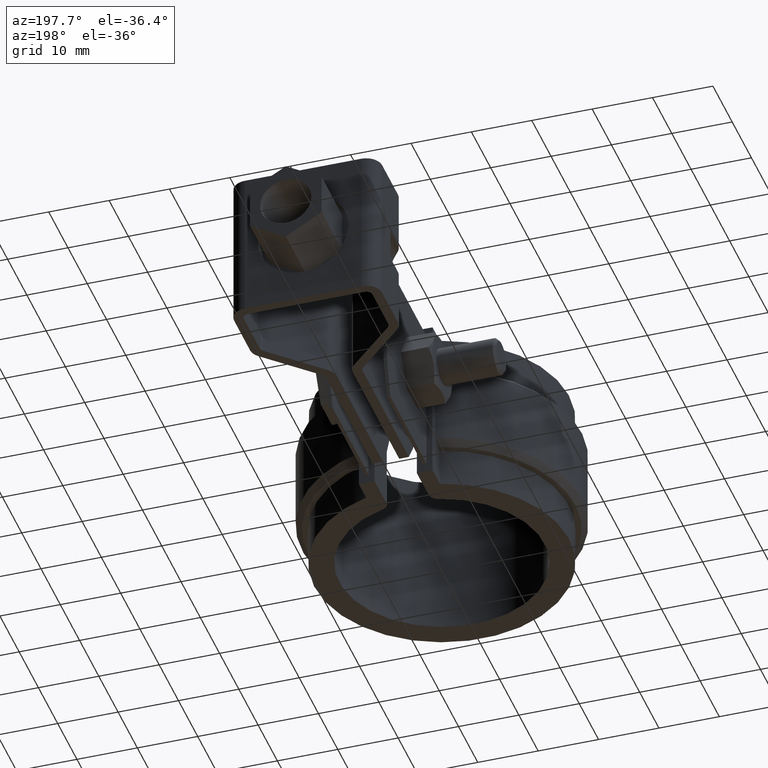
[diagram: clean part render]
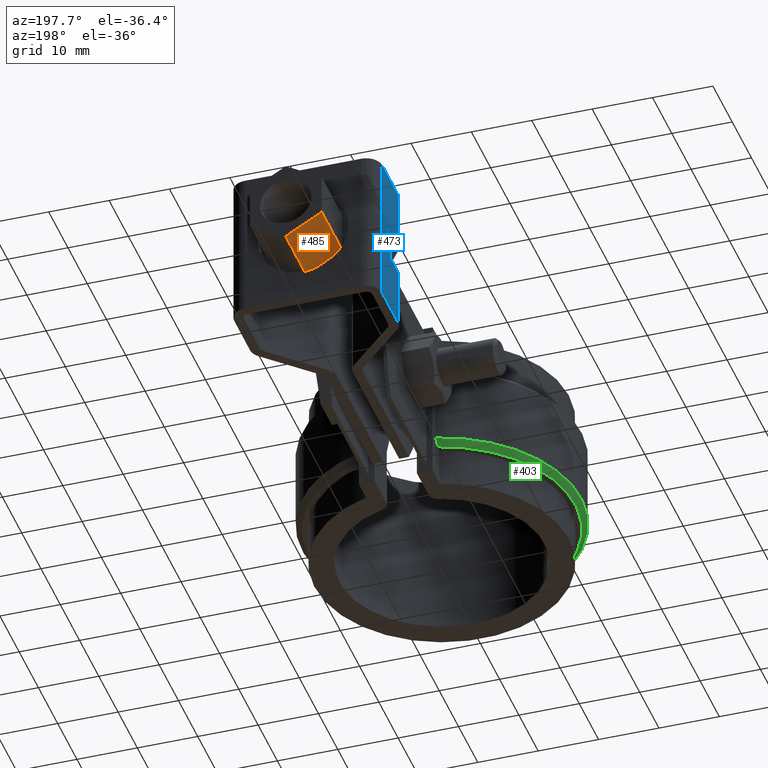
[diagram: same view with three faces highlighted in distinct colors, each labeled with its STEP entity id]
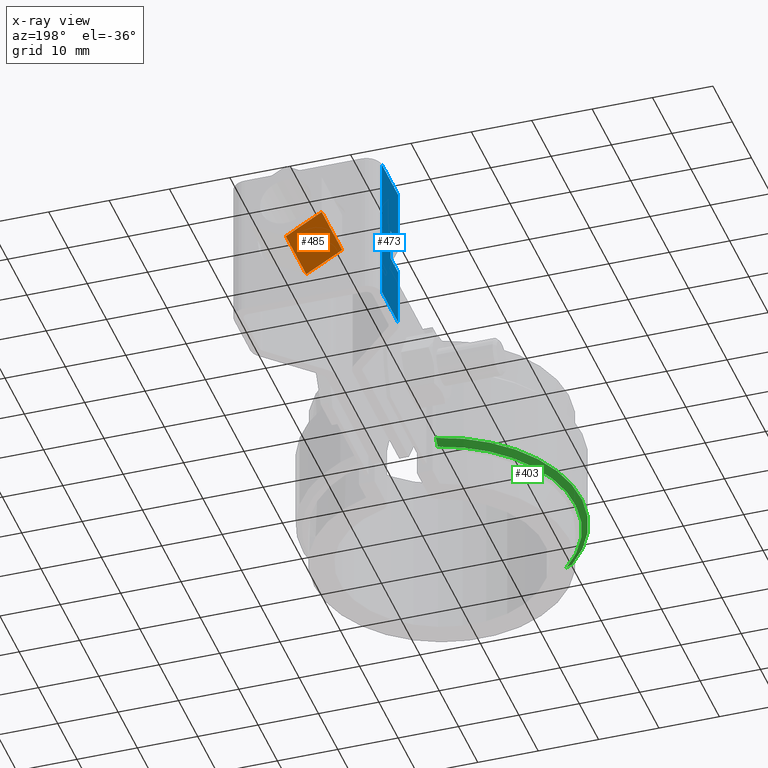
[diagram: x-ray of the same camera — body ghosted, the three highlighted faces saturated]
A machine part, auxiliary view with three faces highlighted in distinct colors.
The next image is the same camera in x-ray (body ghosted, the three faces saturated) — at least one of them is partly hidden behind the body in this view.
Their STEP definitions:

[orange] entity #485 — the highlighted planar face has unit normal (0.5, -0, 0.866).
#485 = ADVANCED_FACE( '', ( #886 ), #887, .F. );
#886 = FACE_OUTER_BOUND( '', #1724, .T. );
#887 = PLANE( '', #1725 );
#1724 = EDGE_LOOP( '', ( #3993, #3994, #3995, #3996 ) );
#1725 = AXIS2_PLACEMENT_3D( '', #3997, #3998, #3999 );
#3993 = ORIENTED_EDGE( '', *, *, #4792, .T. );
#3994 = ORIENTED_EDGE( '', *, *, #4796, .F. );
#3995 = ORIENTED_EDGE( '', *, *, #4797, .F. );
#3996 = ORIENTED_EDGE( '', *, *, #4794, .T. );
#3997 = CARTESIAN_POINT( '', ( 9.87708638441679E-007, 81.0043601136124, -19.3704657112560 ) );
#3998 = DIRECTION( '', ( 0.500000000366226, -1.78605861846633E-008, 0.866025403572998 ) );
#3999 = DIRECTION( '', ( 0.866025403572998, 2.36444923019715E-009, -0.500000000366226 ) );
#4792 = EDGE_CURVE( '', #5711, #5709, #5712, .T. );
#4794 = EDGE_CURVE( '', #5714, #5711, #5715, .T. );
#4796 = EDGE_CURVE( '', #5717, #5709, #5718, .T. );
#4797 = EDGE_CURVE( '', #5714, #5717, #5719, .T. );
#5709 = VERTEX_POINT( '', #8499 );
#5711 = VERTEX_POINT( '', #8502 );
#5712 = LINE( '', #8503, #8504 );
#5714 = VERTEX_POINT( '', #8507 );
#5715 = LINE( '', #8508, #8509 );
#5717 = VERTEX_POINT( '', #8512 );
#5718 = LINE( '', #8513, #8514 );
#5719 = LINE( '', #8515, #8516 );
#8499 = CARTESIAN_POINT( '', ( -5.94999908379444, 70.4043600973675, -15.9352317835510 ) );
#8502 = CARTESIAN_POINT( '', ( 9.14752864706285E-007, 70.4043601136124, -19.3704658877454 ) );
#8503 = CARTESIAN_POINT( '', ( 9.14752866441008E-007, 70.4043601136124, -19.3704658877454 ) );
#8504 = VECTOR( '', #9409, 1000.00000000000 );
#8507 = CARTESIAN_POINT( '', ( 9.87708636706956E-007, 81.0043601136124, -19.3704657112560 ) );
#8508 = CARTESIAN_POINT( '', ( 9.87708636706956E-007, 81.0043601136124, -19.3704657112560 ) );
#8509 = VECTOR( '', #9411, 1000.00000000000 );
#8512 = CARTESIAN_POINT( '', ( -5.94999901083867, 81.0043600973675, -15.9352316070615 ) );
#8513 = CARTESIAN_POINT( '', ( -5.94999901083867, 81.0043600973675, -15.9352316070615 ) );
#8514 = VECTOR( '', #9413, 1000.00000000000 );
#8515 = CARTESIAN_POINT( '', ( 9.87708638441679E-007, 81.0043601136124, -19.3704657112560 ) );
#8516 = VECTOR( '', #9414, 1000.00000000000 );
#9409 = DIRECTION( '', ( -0.866025403572998, -2.36444923019716E-009, 0.500000000366226 ) );
#9411 = DIRECTION( '', ( -6.88262000006329E-009, -1.00000000000000, -1.66499459745878E-008 ) );
#9413 = DIRECTION( '', ( -6.88262000006329E-009, -1.00000000000000, -1.66499459745878E-008 ) );
#9414 = DIRECTION( '', ( -0.866025403572998, -2.36444923019716E-009, 0.500000000366226 ) );

[blue] entity #473 — the highlighted planar face has unit normal (-1, 0, 0).
#473 = ADVANCED_FACE( '', ( #859 ), #860, .T. );
#859 = FACE_OUTER_BOUND( '', #1697, .T. );
#860 = PLANE( '', #1698 );
#1697 = EDGE_LOOP( '', ( #3899, #3900, #3901, #3902, #3903, #3904, #3905, #3906 ) );
#1698 = AXIS2_PLACEMENT_3D( '', #3907, #3908, #3909 );
#3899 = ORIENTED_EDGE( '', *, *, #4778, .F. );
#3900 = ORIENTED_EDGE( '', *, *, #4750, .T. );
#3901 = ORIENTED_EDGE( '', *, *, #4752, .T. );
#3902 = ORIENTED_EDGE( '', *, *, #4747, .F. );
#3903 = ORIENTED_EDGE( '', *, *, #4754, .F. );
#3904 = ORIENTED_EDGE( '', *, *, #4672, .T. );
#3905 = ORIENTED_EDGE( '', *, *, #4679, .T. );
#3906 = ORIENTED_EDGE( '', *, *, #4772, .F. );
#3907 = CARTESIAN_POINT( '', ( -12.2499991410929, 61.1001656745214, 2.16587713042227E-006 ) );
#3908 = DIRECTION( '', ( -1.00000000000000, 6.88261999302233E-009, 4.22881814054225E-010 ) );
#3909 = DIRECTION( '', ( -6.88262000006329E-009, -1.00000000000000, -1.66499459745878E-008 ) );
#4672 = EDGE_CURVE( '', #5516, #5514, #5517, .T. );
#4679 = EDGE_CURVE( '', #5514, #5527, #5530, .T. );
#4747 = EDGE_CURVE( '', #5641, #5643, #5644, .T. );
#4750 = EDGE_CURVE( '', #5648, #5646, #5649, .T. );
#4752 = EDGE_CURVE( '', #5646, #5643, #5651, .T. );
#4754 = EDGE_CURVE( '', #5516, #5641, #5653, .T. );
#4772 = EDGE_CURVE( '', #5677, #5527, #5679, .T. );
#4778 = EDGE_CURVE( '', #5648, #5677, #5688, .T. );
#5514 = VERTEX_POINT( '', #8178 );
#5516 = VERTEX_POINT( '', #8180 );
#5517 = LINE( '', #8181, #8182 );
#5527 = VERTEX_POINT( '', #8195 );
#5530 = LINE( '', #8198, #8199 );
#5641 = VERTEX_POINT( '', #8384 );
#5643 = VERTEX_POINT( '', #8393 );
#5644 = LINE( '', #8394, #8395 );
#5646 = VERTEX_POINT( '', #8397 );
#5648 = VERTEX_POINT( '', #8399 );
#5649 = LINE( '', #8400, #8401 );
#5651 = LINE( '', #8412, #8413 );
#5653 = LINE( '', #8416, #8417 );
#5677 = VERTEX_POINT( '', #8453 );
#5679 = LINE( '', #8455, #8456 );
#5688 = LINE( '', #8467, #8468 );
#8178 = CARTESIAN_POINT( '', ( -12.2499990839383, 69.4043598754072, 2.30414151647373E-006 ) );
#8180 = CARTESIAN_POINT( '', ( -12.2499991410929, 61.1001656745214, 2.16587713042227E-006 ) );
#8181 = CARTESIAN_POINT( '', ( -12.2499991410929, 61.1001656745214, 2.16587713042227E-006 ) );
#8182 = VECTOR( '', #9223, 1000.00000000000 );
#8195 = CARTESIAN_POINT( '', ( -12.2499990945104, 69.4043602916559, -24.9999976958585 ) );
#8198 = CARTESIAN_POINT( '', ( -12.2499990839383, 69.4043598754072, 2.30414151647373E-006 ) );
#8199 = VECTOR( '', #9236, 1000.00000000000 );
#8384 = CARTESIAN_POINT( '', ( -12.2499991452583, 61.1001658385233, -9.84999783412290 ) );
#8393 = CARTESIAN_POINT( '', ( -12.2499991183873, 65.0043600394090, -9.84999776911827 ) );
#8394 = CARTESIAN_POINT( '', ( -12.2499991872135, 55.0043600394089, -9.84999793561773 ) );
#8395 = VECTOR( '', #9341, 1000.00000000000 );
#8397 = CARTESIAN_POINT( '', ( -12.2499991206285, 65.0043601276537, -15.1499977691182 ) );
#8399 = CARTESIAN_POINT( '', ( -12.2499991474996, 61.1001659267680, -15.1499978341228 ) );
#8400 = CARTESIAN_POINT( '', ( -12.2499991894547, 55.0043601276537, -15.1499979356177 ) );
#8401 = VECTOR( '', #9348, 1000.00000000000 );
#8412 = CARTESIAN_POINT( '', ( -12.2499991213051, 65.0043601542938, -16.7499977691182 ) );
#8413 = VECTOR( '', #9349, 1000.00000000000 );
#8416 = CARTESIAN_POINT( '', ( -12.2499991410929, 61.1001656745214, 2.16587713042227E-006 ) );
#8417 = VECTOR( '', #9351, 1000.00000000000 );
#8453 = CARTESIAN_POINT( '', ( -12.2499991516650, 61.1001660907700, -24.9999978341229 ) );
#8455 = CARTESIAN_POINT( '', ( -12.2499991516650, 61.1001660907700, -24.9999978341229 ) );
#8456 = VECTOR( '', #9379, 1000.00000000000 );
#8467 = CARTESIAN_POINT( '', ( -12.2499991410929, 61.1001656745214, 2.16587713042227E-006 ) );
#8468 = VECTOR( '', #9391, 1000.00000000000 );
#9223 = DIRECTION( '', ( 6.88262000006329E-009, 1.00000000000000, 1.66499459745878E-008 ) );
#9236 = DIRECTION( '', ( -4.22881699458974E-010, 1.66499459774983E-008, -1.00000000000000 ) );
#9341 = DIRECTION( '', ( 6.88262000006329E-009, 1.00000000000000, 1.66499459745878E-008 ) );
#9348 = DIRECTION( '', ( 6.88262000006329E-009, 1.00000000000000, 1.66499459745878E-008 ) );
#9349 = DIRECTION( '', ( 4.22881697608438E-010, -1.66499459774983E-008, 1.00000000000000 ) );
#9351 = DIRECTION( '', ( -4.22881699458974E-010, 1.66499459774983E-008, -1.00000000000000 ) );
#9379 = DIRECTION( '', ( 6.88262000006329E-009, 1.00000000000000, 1.66499459745878E-008 ) );
#9391 = DIRECTION( '', ( -4.22881699458974E-010, 1.66499459774983E-008, -1.00000000000000 ) );

[green] entity #403 — the highlighted conical surface has half-angle 45 deg.
#403 = ADVANCED_FACE( '', ( #711 ), #712, .T. );
#711 = FACE_OUTER_BOUND( '', #1549, .T. );
#712 = CONICAL_SURFACE( '', #1550, 23.0950000000000, 0.785398163397447 );
#1549 = EDGE_LOOP( '', ( #3311, #3312, #3313, #3314 ) );
#1550 = AXIS2_PLACEMENT_3D( '', #3315, #3316, #3317 );
#3311 = ORIENTED_EDGE( '', *, *, #4444, .F. );
#3312 = ORIENTED_EDGE( '', *, *, #4616, .F. );
#3313 = ORIENTED_EDGE( '', *, *, #4614, .F. );
#3314 = ORIENTED_EDGE( '', *, *, #4617, .F. );
#3315 = CARTESIAN_POINT( '', ( -8.67361737988404E-016, -6.93889390390723E-015, -19.0000000000000 ) );
#3316 = DIRECTION( '', ( 0.000000000000000, 0.000000000000000, 1.00000000000000 ) );
#3317 = DIRECTION( '', ( 1.00000000000000, 0.000000000000000, 0.000000000000000 ) );
#4444 = EDGE_CURVE( '', #5133, #5135, #5136, .T. );
#4614 = EDGE_CURVE( '', #5423, #5425, #5426, .T. );
#4616 = EDGE_CURVE( '', #5425, #5133, #5428, .T. );
#4617 = EDGE_CURVE( '', #5135, #5423, #5429, .F. );
#5133 = VERTEX_POINT( '', #6918 );
#5135 = VERTEX_POINT( '', #6921 );
#5136 = B_SPLINE_CURVE_WITH_KNOTS( '', 3, ( #6922, #6923, #6924, #6925 ), .UNSPECIFIED., .F., .F., ( 4, 4 ), ( 0.000000000000000, 0.00144175553964642 ), .UNSPECIFIED. );
#5423 = VERTEX_POINT( '', #8055 );
#5425 = VERTEX_POINT( '', #8057 );
#5426 = LINE( '', #8058, #8059 );
#5428 = CIRCLE( '', #8061, 22.0950000000000 );
#5429 = CIRCLE( '', #8062, 23.0950000000000 );
#6918 = CARTESIAN_POINT( '', ( -6.09999999999999, 21.2362667387655, -20.0000000000000 ) );
#6921 = CARTESIAN_POINT( '', ( -6.09999999999999, 22.2748518513592, -19.0000000000000 ) );
#6922 = CARTESIAN_POINT( '', ( -6.09999999999999, 21.2362667387655, -20.0000000000000 ) );
#6923 = CARTESIAN_POINT( '', ( -6.09999999999999, 21.5827583504448, -19.6669749586619 ) );
#6924 = CARTESIAN_POINT( '', ( -6.09999999999999, 21.9289403275758, -19.3336275360880 ) );
#6925 = CARTESIAN_POINT( '', ( -6.09999999999999, 22.2748518513592, -19.0000000000000 ) );
#8055 = CARTESIAN_POINT( '', ( -16.4128629004502, -16.2479831490258, -19.0000000000000 ) );
#8057 = CARTESIAN_POINT( '', ( -15.7021955308702, -15.5444549763033, -20.0000000000000 ) );
#8058 = CARTESIAN_POINT( '', ( -16.4128629004502, -16.2479831490258, -19.0000000000000 ) );
#8059 = VECTOR( '', #9113, 1000.00000000000 );
#8061 = AXIS2_PLACEMENT_3D( '', #9117, #9118, #9119 );
#8062 = AXIS2_PLACEMENT_3D( '', #9120, #9121, #9122 );
#9113 = DIRECTION( '', ( 0.502517716198027, 0.497469541687849, -0.707106781186548 ) );
#9117 = CARTESIAN_POINT( '', ( -8.67361737988404E-016, -6.93889390390723E-015, -20.0000000000000 ) );
#9118 = DIRECTION( '', ( 0.000000000000000, 0.000000000000000, -1.00000000000000 ) );
#9119 = DIRECTION( '', ( -1.00000000000000, 0.000000000000000, 0.000000000000000 ) );
#9120 = CARTESIAN_POINT( '', ( -8.67361737988404E-016, -6.93889390390723E-015, -19.0000000000000 ) );
#9121 = DIRECTION( '', ( 0.000000000000000, 0.000000000000000, -1.00000000000000 ) );
#9122 = DIRECTION( '', ( -1.00000000000000, 0.000000000000000, 0.000000000000000 ) );